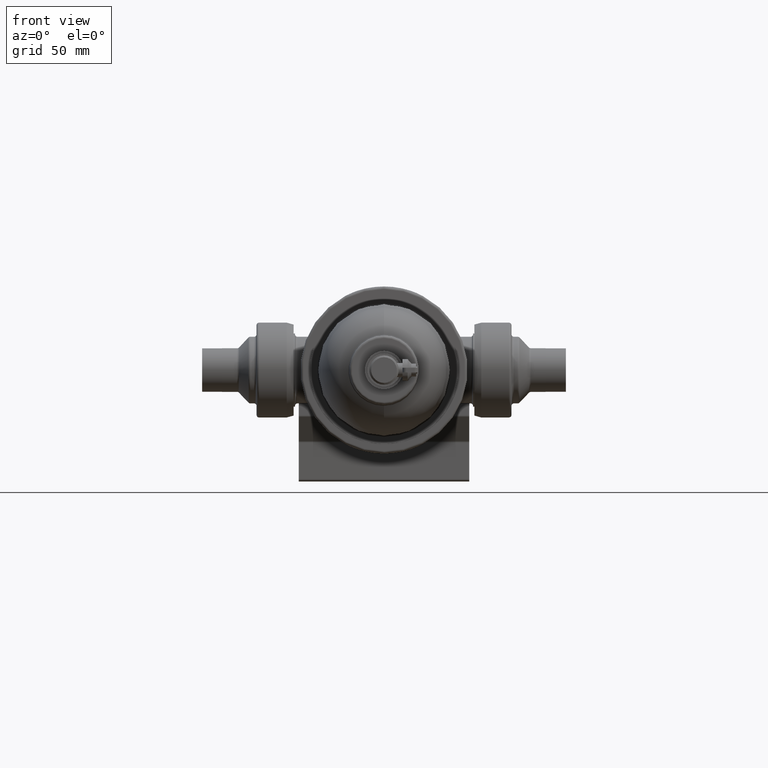
[diagram: clean part render]
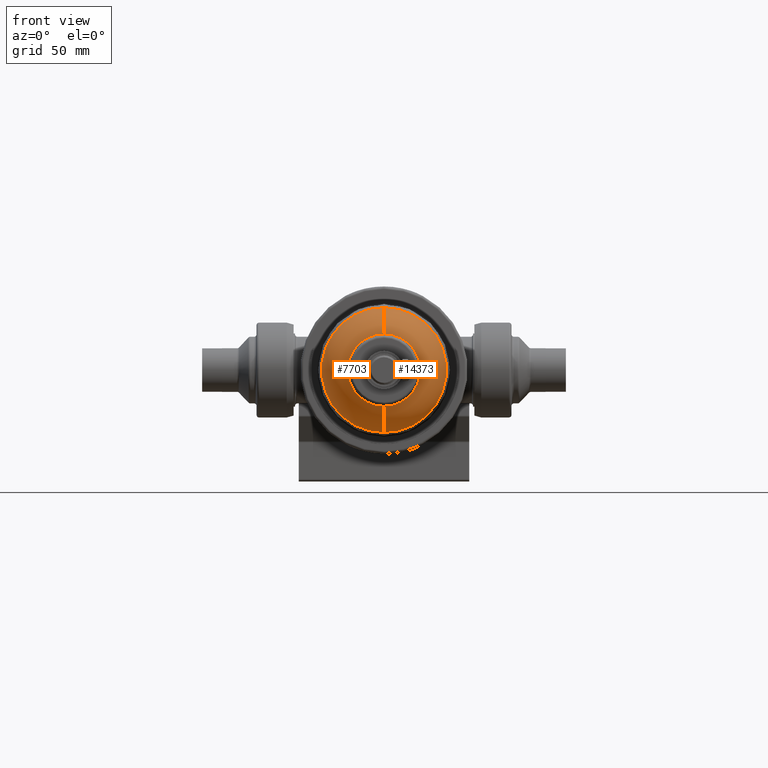
[diagram: same view with one multi-face feature highlighted, each face labeled with its STEP entity id]
A machine part, front view. The highlighted faces form ONE feature: a constant-radius fillet chain: 2 tangent blend faces with common blend radius 31.5982 mm. The faces share edges in the B-rep.
Their STEP definitions:
[1] entity #7703 (Torus):
#452 = ORIENTED_EDGE ( 'NONE', *, *, #9724, .T. ) ;
#821 = CIRCLE ( 'NONE', #7207, 31.59822563192055256 ) ;
#1436 = VERTEX_POINT ( 'NONE', #7331 ) ;
#1656 = DIRECTION ( 'NONE',  ( -0.0000000000000000000, 1.000000000000000000, -0.0000000000000000000 ) ) ;
#2209 = DIRECTION ( 'NONE',  ( -1.000000000000000000, 0.0000000000000000000, 0.0000000000000000000 ) ) ;
#2391 = CARTESIAN_POINT ( 'NONE',  ( 0.0000000000000000000, -281.2943889421957806, 0.0000000000000000000 ) ) ;
#2843 = EDGE_CURVE ( 'NONE', #2966, #9216, #3291, .T. ) ;
#2892 = ORIENTED_EDGE ( 'NONE', *, *, #2843, .F. ) ;
#2966 = VERTEX_POINT ( 'NONE', #7957 ) ;
#3291 = CIRCLE ( 'NONE', #13456, 31.59822563192055256 ) ;
#3528 = DIRECTION ( 'NONE',  ( 0.0000000000000000000, 0.0000000000000000000, 1.000000000000000000 ) ) ;
#3854 = CARTESIAN_POINT ( 'NONE',  ( 0.0000000000000000000, -252.7499999999886597, 0.0000000000000000000 ) ) ;
#3873 = CARTESIAN_POINT ( 'NONE',  ( 0.0000000000000000000, -251.7201704545340988, 0.0000000000000000000 ) ) ;
#4159 = AXIS2_PLACEMENT_3D ( 'NONE', #2391, #10252, #3528 ) ;
#4464 = CARTESIAN_POINT ( 'NONE',  ( 2.102542279217937919E-15, -251.7201704545340988, -17.16856060606053802 ) ) ;
#4847 = AXIS2_PLACEMENT_3D ( 'NONE', #3873, #1656, #9537 ) ;
#4954 = DIRECTION ( 'NONE',  ( 0.0000000000000000000, 0.0000000000000000000, 1.000000000000000000 ) ) ;
#4956 = AXIS2_PLACEMENT_3D ( 'NONE', #3854, #11724, #4954 ) ;
#5431 = EDGE_CURVE ( 'NONE', #10057, #1436, #821, .T. ) ;
#5622 = DIRECTION ( 'NONE',  ( 1.224646799147353207E-16, 0.0000000000000000000, -1.000000000000000000 ) ) ;
#6618 = CIRCLE ( 'NONE', #4159, 28.29571046259662381 ) ;
#7207 = AXIS2_PLACEMENT_3D ( 'NONE', #8937, #2209, #10078 ) ;
#7331 = CARTESIAN_POINT ( 'NONE',  ( 0.0000000000000000000, -252.7499999999886597, 48.74999999999997158 ) ) ;
#7703 = ADVANCED_FACE ( 'NONE', ( #14481 ), #7765, .T. ) ;
#7765 = TOROIDAL_SURFACE ( 'NONE', #4847, 17.16856060606053802, 31.59822563192055256 ) ;
#7957 = CARTESIAN_POINT ( 'NONE',  ( 4.717689135302633574E-15, -281.2943889421957806, -28.29571046259662381 ) ) ;
#8937 = CARTESIAN_POINT ( 'NONE',  ( 0.0000000000000000000, -251.7201704545340988, 17.16856060606053802 ) ) ;
#9216 = VERTEX_POINT ( 'NONE', #9454 ) ;
#9454 = CARTESIAN_POINT ( 'NONE',  ( 6.107925910747421036E-15, -252.7499999999886597, -48.74999999999997158 ) ) ;
#9537 = DIRECTION ( 'NONE',  ( 0.0000000000000000000, 0.0000000000000000000, 1.000000000000000000 ) ) ;
#9724 = EDGE_CURVE ( 'NONE', #2966, #10057, #6618, .T. ) ;
#10032 = EDGE_LOOP ( 'NONE', ( #2892, #452, #13489, #13981 ) ) ;
#10057 = VERTEX_POINT ( 'NONE', #12897 ) ;
#10078 = DIRECTION ( 'NONE',  ( 0.0000000000000000000, 0.0000000000000000000, 1.000000000000000000 ) ) ;
#10252 = DIRECTION ( 'NONE',  ( -0.0000000000000000000, 1.000000000000000000, -0.0000000000000000000 ) ) ;
#11332 = EDGE_CURVE ( 'NONE', #9216, #1436, #11540, .T. ) ;
#11540 = CIRCLE ( 'NONE', #4956, 48.74999999999997158 ) ;
#11724 = DIRECTION ( 'NONE',  ( -0.0000000000000000000, 1.000000000000000000, -0.0000000000000000000 ) ) ;
#12365 = DIRECTION ( 'NONE',  ( 1.000000000000000000, 0.0000000000000000000, 1.224646799147353207E-16 ) ) ;
#12897 = CARTESIAN_POINT ( 'NONE',  ( 0.0000000000000000000, -281.2943889421957806, 28.29571046259662381 ) ) ;
#13456 = AXIS2_PLACEMENT_3D ( 'NONE', #4464, #12365, #5622 ) ;
#13489 = ORIENTED_EDGE ( 'NONE', *, *, #5431, .T. ) ;
#13981 = ORIENTED_EDGE ( 'NONE', *, *, #11332, .F. ) ;
#14481 = FACE_OUTER_BOUND ( 'NONE', #10032, .T. ) ;
[2] entity #14373 (Torus):
#336 = ORIENTED_EDGE ( 'NONE', *, *, #2843, .T. ) ;
#821 = CIRCLE ( 'NONE', #7207, 31.59822563192055256 ) ;
#1247 = DIRECTION ( 'NONE',  ( -0.0000000000000000000, 1.000000000000000000, -0.0000000000000000000 ) ) ;
#1436 = VERTEX_POINT ( 'NONE', #7331 ) ;
#2209 = DIRECTION ( 'NONE',  ( -1.000000000000000000, 0.0000000000000000000, 0.0000000000000000000 ) ) ;
#2843 = EDGE_CURVE ( 'NONE', #2966, #9216, #3291, .T. ) ;
#2966 = VERTEX_POINT ( 'NONE', #7957 ) ;
#3291 = CIRCLE ( 'NONE', #13456, 31.59822563192055256 ) ;
#3860 = EDGE_CURVE ( 'NONE', #10057, #2966, #11780, .T. ) ;
#3905 = AXIS2_PLACEMENT_3D ( 'NONE', #4811, #12714, #5968 ) ;
#4028 = CIRCLE ( 'NONE', #3905, 48.74999999999997158 ) ;
#4140 = EDGE_CURVE ( 'NONE', #1436, #9216, #4028, .T. ) ;
#4464 = CARTESIAN_POINT ( 'NONE',  ( 2.102542279217937919E-15, -251.7201704545340988, -17.16856060606053802 ) ) ;
#4811 = CARTESIAN_POINT ( 'NONE',  ( 0.0000000000000000000, -252.7499999999886597, 0.0000000000000000000 ) ) ;
#4893 = AXIS2_PLACEMENT_3D ( 'NONE', #7938, #1247, #9095 ) ;
#5154 = DIRECTION ( 'NONE',  ( -0.0000000000000000000, 1.000000000000000000, -0.0000000000000000000 ) ) ;
#5431 = EDGE_CURVE ( 'NONE', #10057, #1436, #821, .T. ) ;
#5622 = DIRECTION ( 'NONE',  ( 1.224646799147353207E-16, 0.0000000000000000000, -1.000000000000000000 ) ) ;
#5968 = DIRECTION ( 'NONE',  ( 0.0000000000000000000, 0.0000000000000000000, 1.000000000000000000 ) ) ;
#6586 = AXIS2_PLACEMENT_3D ( 'NONE', #8500, #5154, #13048 ) ;
#7207 = AXIS2_PLACEMENT_3D ( 'NONE', #8937, #2209, #10078 ) ;
#7331 = CARTESIAN_POINT ( 'NONE',  ( 0.0000000000000000000, -252.7499999999886597, 48.74999999999997158 ) ) ;
#7684 = FACE_OUTER_BOUND ( 'NONE', #13912, .T. ) ;
#7884 = ORIENTED_EDGE ( 'NONE', *, *, #3860, .T. ) ;
#7938 = CARTESIAN_POINT ( 'NONE',  ( 0.0000000000000000000, -281.2943889421957806, 0.0000000000000000000 ) ) ;
#7957 = CARTESIAN_POINT ( 'NONE',  ( 4.717689135302633574E-15, -281.2943889421957806, -28.29571046259662381 ) ) ;
#8500 = CARTESIAN_POINT ( 'NONE',  ( 0.0000000000000000000, -251.7201704545340988, 0.0000000000000000000 ) ) ;
#8937 = CARTESIAN_POINT ( 'NONE',  ( 0.0000000000000000000, -251.7201704545340988, 17.16856060606053802 ) ) ;
#9095 = DIRECTION ( 'NONE',  ( 0.0000000000000000000, 0.0000000000000000000, 1.000000000000000000 ) ) ;
#9216 = VERTEX_POINT ( 'NONE', #9454 ) ;
#9454 = CARTESIAN_POINT ( 'NONE',  ( 6.107925910747421036E-15, -252.7499999999886597, -48.74999999999997158 ) ) ;
#9504 = ORIENTED_EDGE ( 'NONE', *, *, #4140, .F. ) ;
#9676 = TOROIDAL_SURFACE ( 'NONE', #6586, 17.16856060606053802, 31.59822563192055256 ) ;
#10057 = VERTEX_POINT ( 'NONE', #12897 ) ;
#10078 = DIRECTION ( 'NONE',  ( 0.0000000000000000000, 0.0000000000000000000, 1.000000000000000000 ) ) ;
#11474 = ORIENTED_EDGE ( 'NONE', *, *, #5431, .F. ) ;
#11780 = CIRCLE ( 'NONE', #4893, 28.29571046259662381 ) ;
#12365 = DIRECTION ( 'NONE',  ( 1.000000000000000000, 0.0000000000000000000, 1.224646799147353207E-16 ) ) ;
#12714 = DIRECTION ( 'NONE',  ( -0.0000000000000000000, 1.000000000000000000, -0.0000000000000000000 ) ) ;
#12897 = CARTESIAN_POINT ( 'NONE',  ( 0.0000000000000000000, -281.2943889421957806, 28.29571046259662381 ) ) ;
#13048 = DIRECTION ( 'NONE',  ( 0.0000000000000000000, 0.0000000000000000000, 1.000000000000000000 ) ) ;
#13456 = AXIS2_PLACEMENT_3D ( 'NONE', #4464, #12365, #5622 ) ;
#13912 = EDGE_LOOP ( 'NONE', ( #7884, #336, #9504, #11474 ) ) ;
#14373 = ADVANCED_FACE ( 'NONE', ( #7684 ), #9676, .T. ) ;